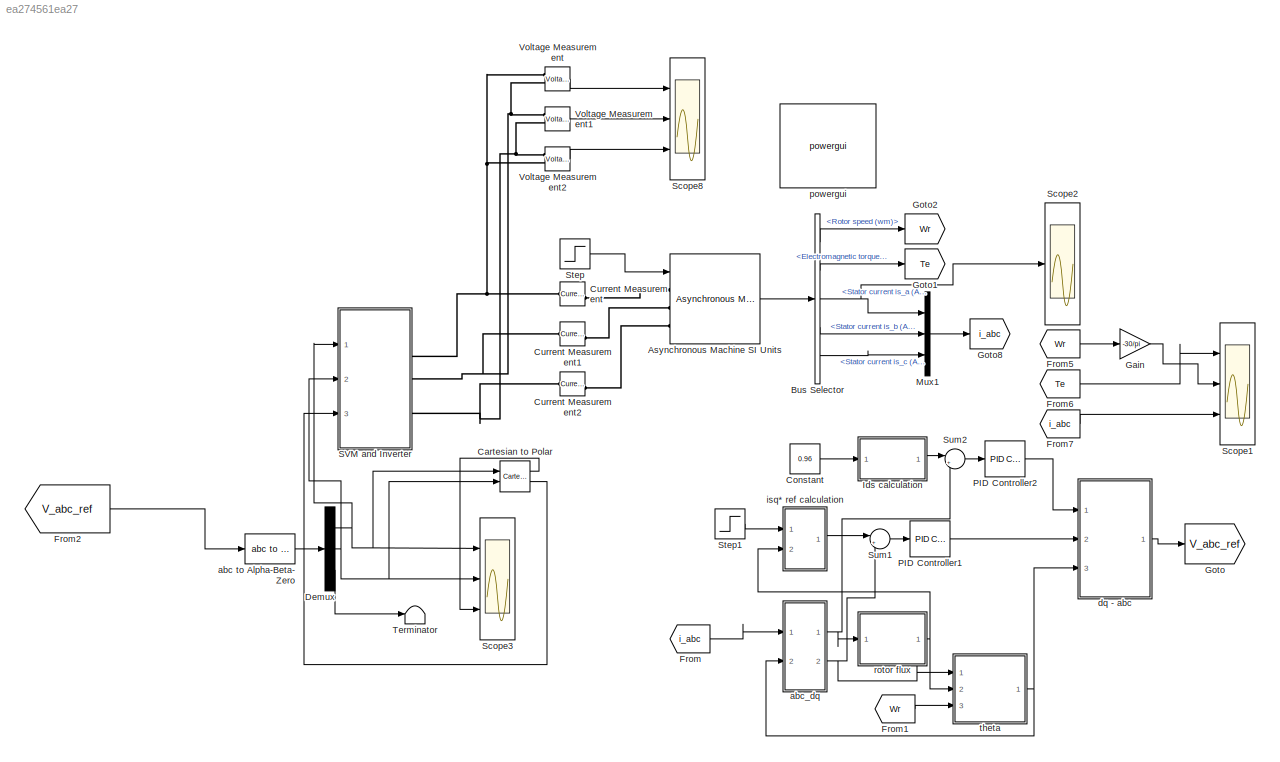
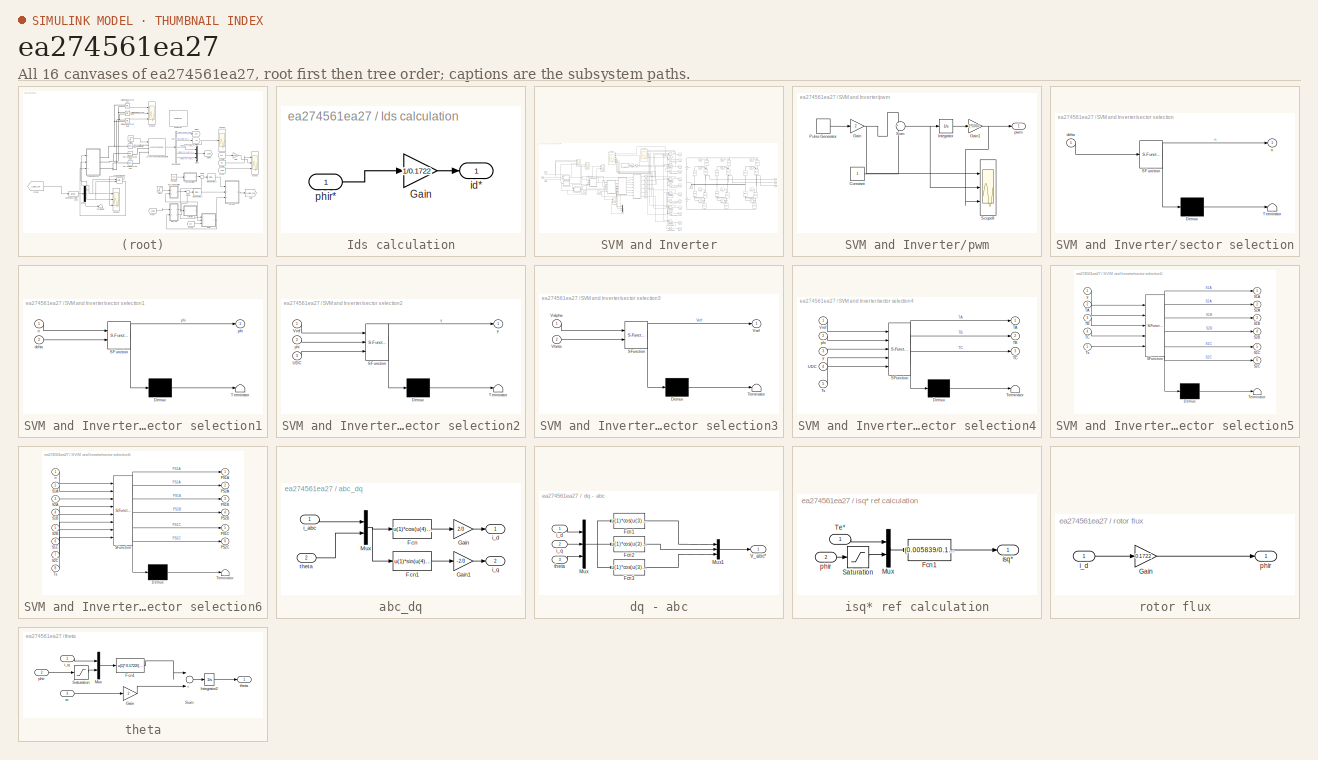
[diagram: thumbnail index - all 16 canvases of the model, root first then tree order]
MODEL slx_ea274561ea27
KIND model
CONFIG AbsTol = auto
CONFIG FixedStep = 10e-6
CONFIG MaxStep = auto
CONFIG MinStep = auto
CONFIG RelTol = 1e-8
CONFIG SampleTimeConstraint = Unconstrained
CONFIG Solver = ode1
CONFIG SolverMode = Auto
CONFIG SolverName = ode1
CONFIG StartTime = 0.0
CONFIG StopTime = 2
BLOCK [Reference] Asynchronous Machine SI Units  REF=powerlib/Machines/Asynchronous Machine
SI Units
  Ports = [1, 1, 0, 0, 0, 3]
  SourceBlock = powerlib/Machines/Asynchronous Machine\nSI Units
  SourceType = Asynchronous Machine
BLOCK [BusSelector] Bus Selector
  OutputSignals = Mechanical.Rotor speed (wm),Mechanical.Electromagnetic torque Te (N*m),Stator measurements.Stator current is_a (A),Stator measurements.Stator current is_b (A),Stator measurements.Stator current is_c (A)
  Ports = [1, 5]
BLOCK [Reference] Cartesian to Polar  REF=simulink_extras/Transformations/Cartesian to
Polar
  Ports = [2, 2]
  SourceBlock = simulink_extras/Transformations/Cartesian to\nPolar
  SourceType = Cart2Polar
BLOCK [Constant] Constant
  Value = 0.96
BLOCK [Reference] Current Measurement  REF=powerlib/Measurements/Current Measurement
  Ports = [0, 1, 0, 0, 0, 1, 1]
  SourceBlock = powerlib/Measurements/Current Measurement
  SourceType = Current Measurement
  UserDataPersistent = on
BLOCK [Reference] Current Measurement1  REF=powerlib/Measurements/Current Measurement
  Ports = [0, 1, 0, 0, 0, 1, 1]
  SourceBlock = powerlib/Measurements/Current Measurement
  SourceType = Current Measurement
  UserDataPersistent = on
BLOCK [Reference] Current Measurement2  REF=powerlib/Measurements/Current Measurement
  Ports = [0, 1, 0, 0, 0, 1, 1]
  SourceBlock = powerlib/Measurements/Current Measurement
  SourceType = Current Measurement
  UserDataPersistent = on
BLOCK [Demux] Demux
  DisplayOption = bar
  Outputs = 3
  Ports = [1, 3]
BLOCK [From] From
  GotoTag = i_abc
  TagVisibility = global
BLOCK [From] From1
  GotoTag = Wr
  TagVisibility = global
BLOCK [From] From2
  GotoTag = V_abc_ref
  TagVisibility = global
BLOCK [From] From5
  GotoTag = Wr
  TagVisibility = global
BLOCK [From] From6
  GotoTag = Te
  TagVisibility = global
BLOCK [From] From7
  GotoTag = i_abc
  TagVisibility = global
BLOCK [Gain] Gain
  Gain = -30/pi
  OutDataTypeStr = Inherit: Inherit via internal rule
  ParamDataTypeStr = Inherit: Inherit via internal rule
  SaturateOnIntegerOverflow = off
BLOCK [Goto] Goto
  GotoTag = V_abc_ref
  TagVisibility = global
BLOCK [Goto] Goto1
  GotoTag = Te
  TagVisibility = global
BLOCK [Goto] Goto2
  GotoTag = Wr
  TagVisibility = global
BLOCK [Goto] Goto8
  GotoTag = i_abc
  TagVisibility = global
BLOCK [SubSystem] Ids calculation
  Ports = [1, 1]
  RequestExecContextInheritance = off
  Variant = off
BLOCK [Gain] Ids calculation/Gain
  Gain = 1/0.1722
  OutDataTypeStr = Inherit: Inherit via internal rule
  ParamDataTypeStr = Inherit: Inherit via internal rule
  SaturateOnIntegerOverflow = off
BLOCK [Outport] Ids calculation/id*
  IconDisplay = Port number
BLOCK [Inport] Ids calculation/phir*
  IconDisplay = Port number
BLOCK [Mux] Mux1
  DisplayOption = bar
  Inputs = 3
  Ports = [3, 1]
BLOCK [Reference] PID Controller1  REF=simulink/Continuous/PID Controller
  Ports = [1, 1]
  SourceBlock = simulink/Continuous/PID Controller
  SourceType = PID 1dof
BLOCK [Reference] PID Controller2  REF=simulink/Continuous/PID Controller
  Ports = [1, 1]
  SourceBlock = simulink/Continuous/PID Controller
  SourceType = PID 1dof
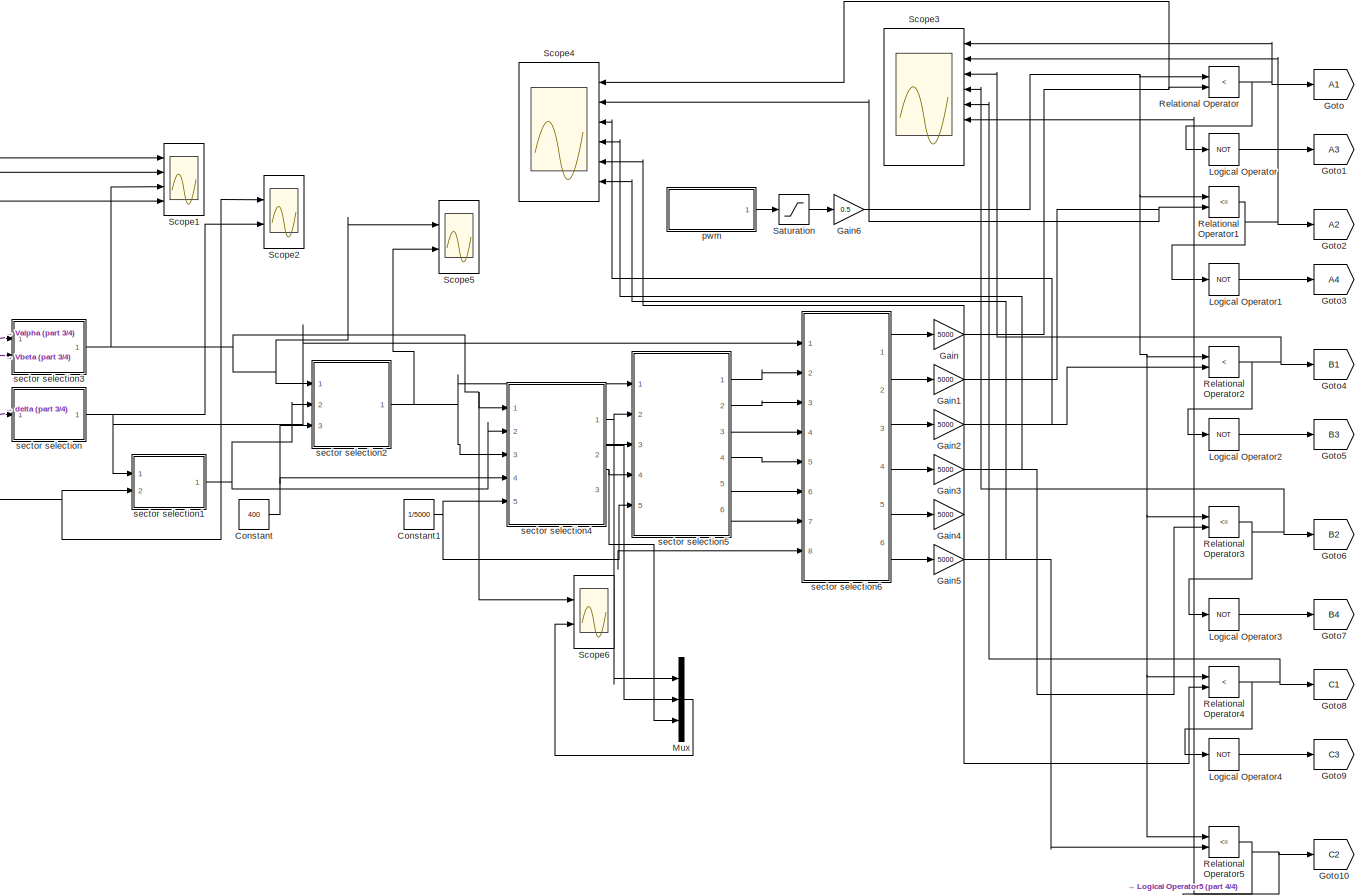
[diagram: SVM and Inverter - part 1/4, center side, full height]
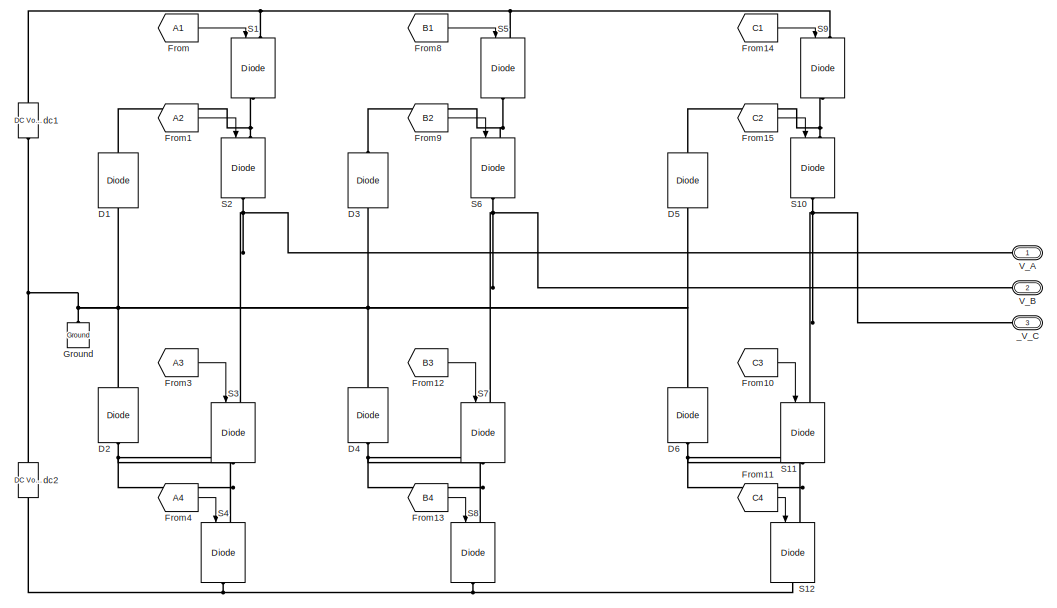
[diagram: SVM and Inverter - part 2/4, middle right region]
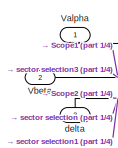
[diagram: SVM and Inverter - part 3/4, middle left region]
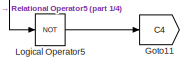
[diagram: SVM and Inverter - part 4/4, bottom center region]
BLOCK [SubSystem] SVM and Inverter
  Ports = [3, 0, 0, 0, 0, 0, 3]
  RequestExecContextInheritance = off
  Variant = off
BLOCK [Constant] SVM and Inverter/Constant
  Value = 400
BLOCK [Constant] SVM and Inverter/Constant1
  Value = 1/5000
BLOCK [Reference] SVM and Inverter/D1  REF=powerlib/Power
Electronics/Diode
  Ports = [0, 0, 0, 0, 0, 1, 1]
  SourceBlock = powerlib/Power\nElectronics/Diode
  SourceType = Diode
BLOCK [Reference] SVM and Inverter/D2  REF=powerlib/Power
Electronics/Diode
  Ports = [0, 0, 0, 0, 0, 1, 1]
  SourceBlock = powerlib/Power\nElectronics/Diode
  SourceType = Diode
BLOCK [Reference] SVM and Inverter/D3  REF=powerlib/Power
Electronics/Diode
  Ports = [0, 0, 0, 0, 0, 1, 1]
  SourceBlock = powerlib/Power\nElectronics/Diode
  SourceType = Diode
BLOCK [Reference] SVM and Inverter/D4  REF=powerlib/Power
Electronics/Diode
  Ports = [0, 0, 0, 0, 0, 1, 1]
  SourceBlock = powerlib/Power\nElectronics/Diode
  SourceType = Diode
BLOCK [Reference] SVM and Inverter/D5  REF=powerlib/Power
Electronics/Diode
  Ports = [0, 0, 0, 0, 0, 1, 1]
  SourceBlock = powerlib/Power\nElectronics/Diode
  SourceType = Diode
BLOCK [Reference] SVM and Inverter/D6  REF=powerlib/Power
Electronics/Diode
  Ports = [0, 0, 0, 0, 0, 1, 1]
  SourceBlock = powerlib/Power\nElectronics/Diode
  SourceType = Diode
BLOCK [From] SVM and Inverter/From
  GotoTag = A1
BLOCK [From] SVM and Inverter/From1
  GotoTag = A2
BLOCK [From] SVM and Inverter/From10
  GotoTag = C3
BLOCK [From] SVM and Inverter/From11
  GotoTag = C4
BLOCK [From] SVM and Inverter/From12
  GotoTag = B3
BLOCK [From] SVM and Inverter/From13
  GotoTag = B4
BLOCK [From] SVM and Inverter/From14
  GotoTag = C1
BLOCK [From] SVM and Inverter/From15
  GotoTag = C2
BLOCK [From] SVM and Inverter/From3
  GotoTag = A3
BLOCK [From] SVM and Inverter/From4
  GotoTag = A4
BLOCK [From] SVM and Inverter/From8
  GotoTag = B1
BLOCK [From] SVM and Inverter/From9
  GotoTag = B2
BLOCK [Gain] SVM and Inverter/Gain
  Gain = 5000
  OutDataTypeStr = Inherit: Inherit via internal rule
  ParamDataTypeStr = Inherit: Inherit via internal rule
  SaturateOnIntegerOverflow = off
BLOCK [Gain] SVM and Inverter/Gain1
  Gain = 5000
  OutDataTypeStr = Inherit: Inherit via internal rule
  ParamDataTypeStr = Inherit: Inherit via internal rule
  SaturateOnIntegerOverflow = off
BLOCK [Gain] SVM and Inverter/Gain2
  Gain = 5000
  OutDataTypeStr = Inherit: Inherit via internal rule
  ParamDataTypeStr = Inherit: Inherit via internal rule
  SaturateOnIntegerOverflow = off
BLOCK [Gain] SVM and Inverter/Gain3
  Gain = 5000
  OutDataTypeStr = Inherit: Inherit via internal rule
  ParamDataTypeStr = Inherit: Inherit via internal rule
  SaturateOnIntegerOverflow = off
BLOCK [Gain] SVM and Inverter/Gain4
  Gain = 5000
  OutDataTypeStr = Inherit: Inherit via internal rule
  ParamDataTypeStr = Inherit: Inherit via internal rule
  SaturateOnIntegerOverflow = off
BLOCK [Gain] SVM and Inverter/Gain5
  Gain = 5000
  OutDataTypeStr = Inherit: Inherit via internal rule
  ParamDataTypeStr = Inherit: Inherit via internal rule
  SaturateOnIntegerOverflow = off
BLOCK [Gain] SVM and Inverter/Gain6
  Gain = 0.5
  OutDataTypeStr = Inherit: Inherit via internal rule
  ParamDataTypeStr = Inherit: Inherit via internal rule
  SaturateOnIntegerOverflow = off
BLOCK [Goto] SVM and Inverter/Goto
  GotoTag = A1
BLOCK [Goto] SVM and Inverter/Goto1
  GotoTag = A3
BLOCK [Goto] SVM and Inverter/Goto10
  GotoTag = C2
BLOCK [Goto] SVM and Inverter/Goto11
  GotoTag = C4
BLOCK [Goto] SVM and Inverter/Goto2
  GotoTag = A2
BLOCK [Goto] SVM and Inverter/Goto3
  GotoTag = A4
BLOCK [Goto] SVM and Inverter/Goto4
  GotoTag = B1
BLOCK [Goto] SVM and Inverter/Goto5
  GotoTag = B3
BLOCK [Goto] SVM and Inverter/Goto6
  GotoTag = B2
BLOCK [Goto] SVM and Inverter/Goto7
  GotoTag = B4
BLOCK [Goto] SVM and Inverter/Goto8
  GotoTag = C1
BLOCK [Goto] SVM and Inverter/Goto9
  GotoTag = C3
BLOCK [Reference] SVM and Inverter/Ground  REF=powerlib/Elements/Ground
  Ports = [0, 0, 0, 0, 0, 1]
  SourceBlock = powerlib/Elements/Ground
  SourceType = Ground
BLOCK [Logic] SVM and Inverter/Logical Operator
  AllPortsSameDT = off
  Operator = NOT
  OutDataTypeStr = boolean
  Ports = [1, 1]
BLOCK [Logic] SVM and Inverter/Logical Operator1
  AllPortsSameDT = off
  Operator = NOT
  OutDataTypeStr = boolean
  Ports = [1, 1]
BLOCK [Logic] SVM and Inverter/Logical Operator2
  AllPortsSameDT = off
  Operator = NOT
  OutDataTypeStr = boolean
  Ports = [1, 1]
BLOCK [Logic] SVM and Inverter/Logical Operator3
  AllPortsSameDT = off
  Operator = NOT
  OutDataTypeStr = boolean
  Ports = [1, 1]
BLOCK [Logic] SVM and Inverter/Logical Operator4
  AllPortsSameDT = off
  Operator = NOT
  OutDataTypeStr = boolean
  Ports = [1, 1]
BLOCK [Logic] SVM and Inverter/Logical Operator5
  AllPortsSameDT = off
  Operator = NOT
  OutDataTypeStr = boolean
  Ports = [1, 1]
BLOCK [Mux] SVM and Inverter/Mux
  DisplayOption = bar
  Inputs = 3
  Ports = [3, 1]
BLOCK [RelationalOperator] SVM and Inverter/Relational Operator
  InputSameDT = off
  Operator = <
  OutDataTypeStr = boolean
  Ports = [2, 1]
BLOCK [RelationalOperator] SVM and Inverter/Relational Operator1
  InputSameDT = off
  Operator = <=
  OutDataTypeStr = boolean
  Ports = [2, 1]
BLOCK [RelationalOperator] SVM and Inverter/Relational Operator2
  InputSameDT = off
  Operator = <
  OutDataTypeStr = boolean
  Ports = [2, 1]
BLOCK [RelationalOperator] SVM and Inverter/Relational Operator3
  InputSameDT = off
  Operator = <=
  OutDataTypeStr = boolean
  Ports = [2, 1]
BLOCK [RelationalOperator] SVM and Inverter/Relational Operator4
  InputSameDT = off
  Operator = <
  OutDataTypeStr = boolean
  Ports = [2, 1]
BLOCK [RelationalOperator] SVM and Inverter/Relational Operator5
  InputSameDT = off
  Operator = <=
  OutDataTypeStr = boolean
  Ports = [2, 1]
BLOCK [Reference] SVM and Inverter/S1  REF=powerlib/Power
Electronics/IGBT//Diode
  Ports = [1, 0, 0, 0, 0, 1, 1]
  SourceBlock = powerlib/Power\nElectronics/IGBT//Diode
  SourceType = IGBT/Diode
BLOCK [Reference] SVM and Inverter/S10  REF=powerlib/Power
Electronics/IGBT//Diode
  Ports = [1, 0, 0, 0, 0, 1, 1]
  SourceBlock = powerlib/Power\nElectronics/IGBT//Diode
  SourceType = IGBT/Diode
BLOCK [Reference] SVM and Inverter/S11  REF=powerlib/Power
Electronics/IGBT//Diode
  Ports = [1, 0, 0, 0, 0, 1, 1]
  SourceBlock = powerlib/Power\nElectronics/IGBT//Diode
  SourceType = IGBT/Diode
BLOCK [Reference] SVM and Inverter/S12  REF=powerlib/Power
Electronics/IGBT//Diode
  Ports = [1, 0, 0, 0, 0, 1, 1]
  SourceBlock = powerlib/Power\nElectronics/IGBT//Diode
  SourceType = IGBT/Diode
BLOCK [Reference] SVM and Inverter/S2  REF=powerlib/Power
Electronics/IGBT//Diode
  Ports = [1, 0, 0, 0, 0, 1, 1]
  SourceBlock = powerlib/Power\nElectronics/IGBT//Diode
  SourceType = IGBT/Diode
BLOCK [Reference] SVM and Inverter/S3  REF=powerlib/Power
Electronics/IGBT//Diode
  Ports = [1, 0, 0, 0, 0, 1, 1]
  SourceBlock = powerlib/Power\nElectronics/IGBT//Diode
  SourceType = IGBT/Diode
BLOCK [Reference] SVM and Inverter/S4  REF=powerlib/Power
Electronics/IGBT//Diode
  Ports = [1, 0, 0, 0, 0, 1, 1]
  SourceBlock = powerlib/Power\nElectronics/IGBT//Diode
  SourceType = IGBT/Diode
BLOCK [Reference] SVM and Inverter/S5  REF=powerlib/Power
Electronics/IGBT//Diode
  Ports = [1, 0, 0, 0, 0, 1, 1]
  SourceBlock = powerlib/Power\nElectronics/IGBT//Diode
  SourceType = IGBT/Diode
BLOCK [Reference] SVM and Inverter/S6  REF=powerlib/Power
Electronics/IGBT//Diode
  Ports = [1, 0, 0, 0, 0, 1, 1]
  SourceBlock = powerlib/Power\nElectronics/IGBT//Diode
  SourceType = IGBT/Diode
BLOCK [Reference] SVM and Inverter/S7  REF=powerlib/Power
Electronics/IGBT//Diode
  Ports = [1, 0, 0, 0, 0, 1, 1]
  SourceBlock = powerlib/Power\nElectronics/IGBT//Diode
  SourceType = IGBT/Diode
BLOCK [Reference] SVM and Inverter/S8  REF=powerlib/Power
Electronics/IGBT//Diode
  Ports = [1, 0, 0, 0, 0, 1, 1]
  SourceBlock = powerlib/Power\nElectronics/IGBT//Diode
  SourceType = IGBT/Diode
BLOCK [Reference] SVM and Inverter/S9  REF=powerlib/Power
Electronics/IGBT//Diode
  Ports = [1, 0, 0, 0, 0, 1, 1]
  SourceBlock = powerlib/Power\nElectronics/IGBT//Diode
  SourceType = IGBT/Diode
BLOCK [Saturate] SVM and Inverter/Saturation
  InputPortMap = u0
  LowerLimit = 0
  Ports = [1, 1]
  UpperLimit = 1
BLOCK [Scope] SVM and Inverter/Scope1
  NumInputPorts = 4
  Ports = [4]
  ScopeSpecificationString = Simulink.scopes.TimeScopeBlockCfg('CurrentConfiguration', extmgr.ConfigurationSet(extmgr.Configuration('Core','General UI',true),extmgr.Configuration('Core','Source UI',true),extmgr.Configuration('Sources','WiredSimulink',true,'DataLoggingVariableName','ScopeData1','DataLoggingSaveFormat','StructureWithTime','DataLoggingDecimation','1','DataLoggingDecimateData',true,'DataLogging',true),extmgr.Conf...<+3640ch>
BLOCK [Scope] SVM and Inverter/Scope2
  NumInputPorts = 2
  Ports = [2]
  ScopeSpecificationString = Simulink.scopes.TimeScopeBlockCfg('CurrentConfiguration', extmgr.ConfigurationSet(extmgr.Configuration('Core','General UI',true,'FigureColor',[1 1 1]),extmgr.Configuration('Core','Source UI',true),extmgr.Configuration('Sources','WiredSimulink',true,'DataLoggingVariableName','ScopeData2','DataLoggingSaveFormat','StructureWithTime','DataLoggingDecimation','1','DataLoggingDecimateData',true,'DataLogg...<+2322ch>
BLOCK [Scope] SVM and Inverter/Scope3
  NumInputPorts = 8
  Ports = [8]
  ScopeSpecificationString = Simulink.scopes.TimeScopeBlockCfg('CurrentConfiguration', extmgr.ConfigurationSet(extmgr.Configuration('Core','General UI',true,'FigureColor',[1 1 1]),extmgr.Configuration('Core','Source UI',true),extmgr.Configuration('Sources','WiredSimulink',true,'DataLoggingVariableName','ScopeData3','DataLoggingSaveFormat','StructureWithTime','DataLoggingDecimation','1','DataLoggingDecimateData',true,'DataLogg...<+7370ch>
BLOCK [Scope] SVM and Inverter/Scope4
  NumInputPorts = 6
  Ports = [6]
  ScopeSpecificationString = Simulink.scopes.TimeScopeBlockCfg('CurrentConfiguration', extmgr.ConfigurationSet(extmgr.Configuration('Core','General UI',true,'FigureColor',[1 1 1]),extmgr.Configuration('Core','Source UI',true),extmgr.Configuration('Sources','WiredSimulink',true,'DataLoggingVariableName','ScopeData4','DataLoggingSaveFormat','StructureWithTime','DataLoggingDecimation','1','DataLoggingDecimateData',true,'DataLogg...<+7197ch>
BLOCK [Scope] SVM and Inverter/Scope5
  NumInputPorts = 2
  Ports = [2]
  ScopeSpecificationString = Simulink.scopes.TimeScopeBlockCfg('CurrentConfiguration', extmgr.ConfigurationSet(extmgr.Configuration('Core','General UI',true,'FigureColor',[1 1 1]),extmgr.Configuration('Core','Source UI',true),extmgr.Configuration('Sources','WiredSimulink',true,'DataLoggingVariableName','ScopeD','DataLoggingSaveFormat','StructureWithTime','DataLoggingDecimation','1','DataLoggingDecimateData',true,'DataLogging'...<+2357ch>
BLOCK [Scope] SVM and Inverter/Scope6
  NumInputPorts = 2
  Ports = [2]
  ScopeSpecificationString = Simulink.scopes.TimeScopeBlockCfg('CurrentConfiguration', extmgr.ConfigurationSet(extmgr.Configuration('Core','General UI',true,'FigureColor',[1 1 1]),extmgr.Configuration('Core','Source UI',true),extmgr.Configuration('Sources','WiredSimulink',true,'DataLoggingVariableName','ScopeData5','DataLoggingSaveFormat','StructureWithTime','DataLoggingDecimation','1','DataLoggingDecimateData',true,'DataLogg...<+2440ch>
BLOCK [PMIOPort] SVM and Inverter/V_A
  Port = 1
  Side = Right
BLOCK [PMIOPort] SVM and Inverter/V_B
  Port = 2
  Side = Right
BLOCK [Inport] SVM and Inverter/Valpha
  IconDisplay = Port number
BLOCK [Inport] SVM and Inverter/Vbeta
  IconDisplay = Port number
  Port = 2
BLOCK [PMIOPort] SVM and Inverter/_V_C
  Port = 3
  Side = Right
BLOCK [Reference] SVM and Inverter/dc1  REF=powerlib/Electrical
Sources/DC Voltage Source
  Ports = [0, 0, 0, 0, 0, 1, 1]
  SourceBlock = powerlib/Electrical\nSources/DC Voltage Source
  SourceType = DC Voltage Source
BLOCK [Reference] SVM and Inverter/dc2  REF=powerlib/Electrical
Sources/DC Voltage Source
  Ports = [0, 0, 0, 0, 0, 1, 1]
  SourceBlock = powerlib/Electrical\nSources/DC Voltage Source
  SourceType = DC Voltage Source
BLOCK [Inport] SVM and Inverter/delta
  IconDisplay = Port number
  Port = 3
BLOCK [SubSystem] SVM and Inverter/pwm
  Ports = [0, 1]
  RequestExecContextInheritance = off
  Variant = off
BLOCK [Constant] SVM and Inverter/pwm/Constant
BLOCK [Gain] SVM and Inverter/pwm/Gain
  Gain = 2
  OutDataTypeStr = Inherit: Inherit via internal rule
  ParamDataTypeStr = Inherit: Inherit via internal rule
  SaturateOnIntegerOverflow = off
BLOCK [Gain] SVM and Inverter/pwm/Gain1
  Gain = 2*5000
  OutDataTypeStr = Inherit: Inherit via internal rule
  ParamDataTypeStr = Inherit: Inherit via internal rule
  SaturateOnIntegerOverflow = off
BLOCK [Integrator] SVM and Inverter/pwm/Integrator
  Ports = [1, 1]
BLOCK [DiscretePulseGenerator] SVM and Inverter/pwm/Pulse Generator
  Period = 1/5000
  Ports = [0, 1]
  PulseType = Time based
  PulseWidth = 50
BLOCK [Scope] SVM and Inverter/pwm/Scope8
  NumInputPorts = 3
  Ports = [3]
  ScopeSpecificationString = Simulink.scopes.TimeScopeBlockCfg('CurrentConfiguration', extmgr.ConfigurationSet(extmgr.Configuration('Core','General UI',true,'FigureColor',[1 1 1]),extmgr.Configuration('Core','Source UI',true),extmgr.Configuration('Sources','WiredSimulink',true,'DataLoggingVariableName','ScopeData2'),extmgr.Configuration('Visuals','Time Domain',true,'SerializedDisplays',{struct('MinYLimReal','-0.25','MaxYLimRe...<+3191ch>
BLOCK [Sum] SVM and Inverter/pwm/Sum
  IconShape = round
  InputSameDT = off
  Inputs = +-
  OutDataTypeStr = Inherit: Inherit via internal rule
  Ports = [2, 1]
  SaturateOnIntegerOverflow = off
BLOCK [Outport] SVM and Inverter/pwm/pwm 
  IconDisplay = Port number
BLOCK [SubSystem] SVM and Inverter/sector selection
  ErrorFcn = Stateflow.Translate.translate
  PermitHierarchicalResolution = ExplicitOnly
  Ports = [1, 1]
  RequestExecContextInheritance = off
  SFBlockType = MATLAB Function
  TreatAsAtomicUnit = on
  Variant = off
BLOCK [Demux] SVM and Inverter/sector selection/ Demux 
  Outputs = 1
  Ports = [1, 1]
BLOCK [S-Function] SVM and Inverter/sector selection/ SFunction 
  EnableBusSupport = on
  FunctionName = sf_sfun
  PortCounts = [1 2]
  Ports = [1, 2]
  SFunctionDeploymentMode = off
  Tag = Stateflow S-Function foc 8
BLOCK [Terminator] SVM and Inverter/sector selection/ Terminator 
BLOCK [Inport] SVM and Inverter/sector selection/delta
  IconDisplay = Port number
BLOCK [Outport] SVM and Inverter/sector selection/n
  IconDisplay = Port number
BLOCK [SubSystem] SVM and Inverter/sector selection1
  ErrorFcn = Stateflow.Translate.translate
  PermitHierarchicalResolution = ExplicitOnly
  Ports = [2, 1]
  RequestExecContextInheritance = off
  SFBlockType = MATLAB Function
  TreatAsAtomicUnit = on
  Variant = off
BLOCK [Demux] SVM and Inverter/sector selection1/ Demux 
  Outputs = 1
  Ports = [1, 1]
BLOCK [S-Function] SVM and Inverter/sector selection1/ SFunction 
  EnableBusSupport = on
  FunctionName = sf_sfun
  PortCounts = [2 2]
  Ports = [2, 2]
  SFunctionDeploymentMode = off
  Tag = Stateflow S-Function foc 9
BLOCK [Terminator] SVM and Inverter/sector selection1/ Terminator 
BLOCK [Inport] SVM and Inverter/sector selection1/delta
  IconDisplay = Port number
  Port = 2
BLOCK [Inport] SVM and Inverter/sector selection1/n
  IconDisplay = Port number
BLOCK [Outport] SVM and Inverter/sector selection1/phi
  IconDisplay = Port number
BLOCK [SubSystem] SVM and Inverter/sector selection2
  ErrorFcn = Stateflow.Translate.translate
  PermitHierarchicalResolution = ExplicitOnly
  Ports = [3, 1]
  RequestExecContextInheritance = off
  SFBlockType = MATLAB Function
  TreatAsAtomicUnit = on
  Variant = off
BLOCK [Demux] SVM and Inverter/sector selection2/ Demux 
  Outputs = 1
  Ports = [1, 1]
BLOCK [S-Function] SVM and Inverter/sector selection2/ SFunction 
  EnableBusSupport = on
  FunctionName = sf_sfun
  PortCounts = [3 2]
  Ports = [3, 2]
  SFunctionDeploymentMode = off
  Tag = Stateflow S-Function foc 10
BLOCK [Terminator] SVM and Inverter/sector selection2/ Terminator 
BLOCK [Inport] SVM and Inverter/sector selection2/UDC
  IconDisplay = Port number
  Port = 3
BLOCK [Inport] SVM and Inverter/sector selection2/Vref
  IconDisplay = Port number
BLOCK [Inport] SVM and Inverter/sector selection2/phi
  IconDisplay = Port number
  Port = 2
BLOCK [Outport] SVM and Inverter/sector selection2/y
  IconDisplay = Port number
BLOCK [SubSystem] SVM and Inverter/sector selection3
  ErrorFcn = Stateflow.Translate.translate
  PermitHierarchicalResolution = ExplicitOnly
  Ports = [2, 1]
  RequestExecContextInheritance = off
  SFBlockType = MATLAB Function
  TreatAsAtomicUnit = on
  Variant = off
BLOCK [Demux] SVM and Inverter/sector selection3/ Demux 
  Outputs = 1
  Ports = [1, 1]
BLOCK [S-Function] SVM and Inverter/sector selection3/ SFunction 
  EnableBusSupport = on
  FunctionName = sf_sfun
  PortCounts = [2 2]
  Ports = [2, 2]
  SFunctionDeploymentMode = off
  Tag = Stateflow S-Function foc 11
BLOCK [Terminator] SVM and Inverter/sector selection3/ Terminator 
BLOCK [Inport] SVM and Inverter/sector selection3/Valpha
  IconDisplay = Port number
BLOCK [Inport] SVM and Inverter/sector selection3/Vbeta
  IconDisplay = Port number
  Port = 2
BLOCK [Outport] SVM and Inverter/sector selection3/Vref
  IconDisplay = Port number
BLOCK [SubSystem] SVM and Inverter/sector selection4
  ErrorFcn = Stateflow.Translate.translate
  PermitHierarchicalResolution = ExplicitOnly
  Ports = [5, 3]
  RequestExecContextInheritance = off
  SFBlockType = MATLAB Function
  TreatAsAtomicUnit = on
  Variant = off
BLOCK [Demux] SVM and Inverter/sector selection4/ Demux 
  Outputs = 1
  Ports = [1, 1]
BLOCK [S-Function] SVM and Inverter/sector selection4/ SFunction 
  EnableBusSupport = on
  FunctionName = sf_sfun
  PortCounts = [5 4]
  Ports = [5, 4]
  SFunctionDeploymentMode = off
  Tag = Stateflow S-Function foc 1
BLOCK [Terminator] SVM and Inverter/sector selection4/ Terminator 
BLOCK [Outport] SVM and Inverter/sector selection4/TA
  IconDisplay = Port number
BLOCK [Outport] SVM and Inverter/sector selection4/TB
  IconDisplay = Port number
  Port = 2
BLOCK [Outport] SVM and Inverter/sector selection4/TC
  IconDisplay = Port number
  Port = 3
BLOCK [Inport] SVM and Inverter/sector selection4/Ts
  IconDisplay = Port number
  Port = 5
BLOCK [Inport] SVM and Inverter/sector selection4/UDC
  IconDisplay = Port number
  Port = 4
BLOCK [Inport] SVM and Inverter/sector selection4/Vref
  IconDisplay = Port number
BLOCK [Inport] SVM and Inverter/sector selection4/phi
  IconDisplay = Port number
  Port = 2
BLOCK [Inport] SVM and Inverter/sector selection4/y
  IconDisplay = Port number
  Port = 3
BLOCK [SubSystem] SVM and Inverter/sector selection5
  ErrorFcn = Stateflow.Translate.translate
  PermitHierarchicalResolution = ExplicitOnly
  Ports = [5, 6]
  RequestExecContextInheritance = off
  SFBlockType = MATLAB Function
  TreatAsAtomicUnit = on
  Variant = off
BLOCK [Demux] SVM and Inverter/sector selection5/ Demux 
  Outputs = 1
  Ports = [1, 1]
BLOCK [S-Function] SVM and Inverter/sector selection5/ SFunction 
  EnableBusSupport = on
  FunctionName = sf_sfun
  PortCounts = [5 7]
  Ports = [5, 7]
  SFunctionDeploymentMode = off
  Tag = Stateflow S-Function foc 2
BLOCK [Terminator] SVM and Inverter/sector selection5/ Terminator 
BLOCK [Outport] SVM and Inverter/sector selection5/S1A
  IconDisplay = Port number
BLOCK [Outport] SVM and Inverter/sector selection5/S1B
  IconDisplay = Port number
  Port = 3
BLOCK [Outport] SVM and Inverter/sector selection5/S1C
  IconDisplay = Port number
  Port = 5
BLOCK [Outport] SVM and Inverter/sector selection5/S2A
  IconDisplay = Port number
  Port = 2
BLOCK [Outport] SVM and Inverter/sector selection5/S2B
  IconDisplay = Port number
  Port = 4
BLOCK [Outport] SVM and Inverter/sector selection5/S2C
  IconDisplay = Port number
  Port = 6
BLOCK [Inport] SVM and Inverter/sector selection5/TA
  IconDisplay = Port number
  Port = 2
BLOCK [Inport] SVM and Inverter/sector selection5/TB
  IconDisplay = Port number
  Port = 3
BLOCK [Inport] SVM and Inverter/sector selection5/TC
  IconDisplay = Port number
  Port = 4
BLOCK [Inport] SVM and Inverter/sector selection5/Ts
  IconDisplay = Port number
  Port = 5
BLOCK [Inport] SVM and Inverter/sector selection5/y
  IconDisplay = Port number
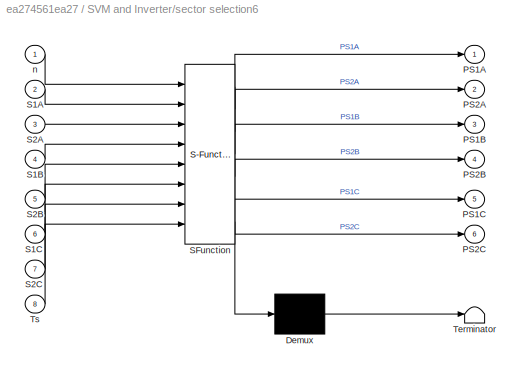
BLOCK [SubSystem] SVM and Inverter/sector selection6
  ErrorFcn = Stateflow.Translate.translate
  PermitHierarchicalResolution = ExplicitOnly
  Ports = [8, 6]
  RequestExecContextInheritance = off
  SFBlockType = MATLAB Function
  TreatAsAtomicUnit = on
  Variant = off
BLOCK [Demux] SVM and Inverter/sector selection6/ Demux 
  Outputs = 1
  Ports = [1, 1]
BLOCK [S-Function] SVM and Inverter/sector selection6/ SFunction 
  EnableBusSupport = on
  FunctionName = sf_sfun
  PortCounts = [8 7]
  Ports = [8, 7]
  SFunctionDeploymentMode = off
  Tag = Stateflow S-Function foc 3
BLOCK [Terminator] SVM and Inverter/sector selection6/ Terminator 
BLOCK [Outport] SVM and Inverter/sector selection6/PS1A
  IconDisplay = Port number
BLOCK [Outport] SVM and Inverter/sector selection6/PS1B
  IconDisplay = Port number
  Port = 3
BLOCK [Outport] SVM and Inverter/sector selection6/PS1C
  IconDisplay = Port number
  Port = 5
BLOCK [Outport] SVM and Inverter/sector selection6/PS2A
  IconDisplay = Port number
  Port = 2
BLOCK [Outport] SVM and Inverter/sector selection6/PS2B
  IconDisplay = Port number
  Port = 4
BLOCK [Outport] SVM and Inverter/sector selection6/PS2C
  IconDisplay = Port number
  Port = 6
BLOCK [Inport] SVM and Inverter/sector selection6/S1A
  IconDisplay = Port number
  Port = 2
BLOCK [Inport] SVM and Inverter/sector selection6/S1B
  IconDisplay = Port number
  Port = 4
BLOCK [Inport] SVM and Inverter/sector selection6/S1C
  IconDisplay = Port number
  Port = 6
BLOCK [Inport] SVM and Inverter/sector selection6/S2A
  IconDisplay = Port number
  Port = 3
BLOCK [Inport] SVM and Inverter/sector selection6/S2B
  IconDisplay = Port number
  Port = 5
BLOCK [Inport] SVM and Inverter/sector selection6/S2C
  IconDisplay = Port number
  Port = 7
BLOCK [Inport] SVM and Inverter/sector selection6/Ts
  IconDisplay = Port number
  Port = 8
BLOCK [Inport] SVM and Inverter/sector selection6/n
  IconDisplay = Port number
BLOCK [Scope] Scope1
  NumInputPorts = 3
  Ports = [3]
  ScopeSpecificationString = Simulink.scopes.TimeScopeBlockCfg('CurrentConfiguration', extmgr.ConfigurationSet(extmgr.Configuration('Core','General UI',true,'FigureColor',[1 1 1]),extmgr.Configuration('Core','Source UI',true),extmgr.Configuration('Sources','WiredSimulink',true,'DataLoggingVariableName','torque','DataLogging',true,'DataLoggingSaveFormat','StructureWithTime'),extmgr.Configuration('Visuals','Time Domain',true,'S...<+3436ch>
BLOCK [Scope] Scope2
  Ports = [1]
  ScopeSpecificationString = Simulink.scopes.TimeScopeBlockCfg('CurrentConfiguration', extmgr.ConfigurationSet(extmgr.Configuration('Core','General UI',true,'FigureColor',[1 1 1]),extmgr.Configuration('Core','Source UI',true),extmgr.Configuration('Sources','WiredSimulink',true,'DataLoggingVariableName','ia','DataLogging',true,'DataLoggingSaveFormat','StructureWithTime'),extmgr.Configuration('Visuals','Time Domain',true,'Seria...<+3467ch>
BLOCK [Scope] Scope3
  NumInputPorts = 3
  Ports = [3]
  ScopeSpecificationString = Simulink.scopes.TimeScopeBlockCfg('CurrentConfiguration', extmgr.ConfigurationSet(extmgr.Configuration('Core','General UI',true),extmgr.Configuration('Core','Source UI',true),extmgr.Configuration('Sources','WiredSimulink',true,'DataLoggingVariableName','ScopeData3'),extmgr.Configuration('Visuals','Time Domain',true,'SerializedDisplays',{struct('MinYLimReal','-1258.67435','MaxYLimReal','1278.51145'...<+2854ch>
BLOCK [Scope] Scope8
  NumInputPorts = 3
  Ports = [3]
  ScopeSpecificationString = Simulink.scopes.TimeScopeBlockCfg('CurrentConfiguration', extmgr.ConfigurationSet(extmgr.Configuration('Core','General UI',true,'FigureColor',[1 1 1]),extmgr.Configuration('Core','Source UI',true),extmgr.Configuration('Sources','WiredSimulink',true,'DataLoggingVariableName','ScopeData7'),extmgr.Configuration('Visuals','Time Domain',true,'SerializedDisplays',{struct('MinYLimReal','-500.08537','MaxY...<+3274ch>
BLOCK [Step] Step
  After = 20
  Before = 10
  SampleTime = 0
BLOCK [Step] Step1
  After = 20
  Before = 10
  SampleTime = 0
BLOCK [Sum] Sum1
  IconShape = round
  InputSameDT = off
  Inputs = |+-
  OutDataTypeStr = Inherit: Inherit via internal rule
  Ports = [2, 1]
  SaturateOnIntegerOverflow = off
BLOCK [Sum] Sum2
  IconShape = round
  InputSameDT = off
  Inputs = |+-
  OutDataTypeStr = Inherit: Inherit via internal rule
  Ports = [2, 1]
  SaturateOnIntegerOverflow = off
BLOCK [Terminator] Terminator
BLOCK [Reference] Voltage Measurement  REF=powerlib/Measurements/Voltage Measurement
  Ports = [0, 1, 0, 0, 0, 2]
  SourceBlock = powerlib/Measurements/Voltage Measurement
  SourceType = Voltage Measurement
  UserDataPersistent = on
BLOCK [Reference] Voltage Measurement1  REF=powerlib/Measurements/Voltage Measurement
  Ports = [0, 1, 0, 0, 0, 2]
  SourceBlock = powerlib/Measurements/Voltage Measurement
  SourceType = Voltage Measurement
  UserDataPersistent = on
BLOCK [Reference] Voltage Measurement2  REF=powerlib/Measurements/Voltage Measurement
  Ports = [0, 1, 0, 0, 0, 2]
  SourceBlock = powerlib/Measurements/Voltage Measurement
  SourceType = Voltage Measurement
  UserDataPersistent = on
BLOCK [Reference] abc to Alpha-Beta-Zero  REF=powerlib_meascontrol/Transformations/abc to
Alpha-Beta-Zero
  Ports = [1, 1]
  SourceBlock = powerlib_meascontrol/Transformations/abc to\nAlpha-Beta-Zero
  SourceType = abc to Alpha-Beta-Zero Transformation
BLOCK [SubSystem] abc_dq
  Ports = [2, 2]
  RequestExecContextInheritance = off
  Variant = off
BLOCK [Fcn] abc_dq/Fcn
  Expr = u(1)*cos(u(4))+u(2)*cos(u(4)-2*pi/3)+u(3)*cos(u(4)+2*pi/3)
BLOCK [Fcn] abc_dq/Fcn1
  Expr = u(1)*sin(u(4))+u(2)*sin(u(4)-2*pi/3)+u(3)*sin(u(4)+2*pi/3)
BLOCK [Gain] abc_dq/Gain
  Gain = 2/3
  OutDataTypeStr = Inherit: Inherit via internal rule
  ParamDataTypeStr = Inherit: Inherit via internal rule
  SaturateOnIntegerOverflow = off
BLOCK [Gain] abc_dq/Gain1
  Gain = -2/3
  OutDataTypeStr = Inherit: Inherit via internal rule
  ParamDataTypeStr = Inherit: Inherit via internal rule
  SaturateOnIntegerOverflow = off
BLOCK [Mux] abc_dq/Mux
  DisplayOption = bar
  Inputs = 2
  Ports = [2, 1]
BLOCK [Inport] abc_dq/i_abc
  IconDisplay = Port number
BLOCK [Outport] abc_dq/i_d
  IconDisplay = Port number
BLOCK [Outport] abc_dq/i_q
  IconDisplay = Port number
  Port = 2
BLOCK [Inport] abc_dq/theta
  IconDisplay = Port number
  Port = 2
BLOCK [SubSystem] dq - abc
  Ports = [3, 1]
  RequestExecContextInheritance = off
  Variant = off
BLOCK [Fcn] dq - abc/Fcn1
  Expr = u(1)*cos(u(3))-u(2)*sin(u(3))
BLOCK [Fcn] dq - abc/Fcn2
  Expr = u(1)*cos(u(3)-2*pi/3)-u(2)*sin(u(3)-2*pi/3)
BLOCK [Fcn] dq - abc/Fcn3
  Expr = u(1)*cos(u(3)+2*pi/3)-u(2)*sin(u(3)+2*pi/3)
BLOCK [Mux] dq - abc/Mux
  DisplayOption = bar
  Inputs = 3
  Ports = [3, 1]
BLOCK [Mux] dq - abc/Mux1
  DisplayOption = bar
  Inputs = 3
  Ports = [3, 1]
BLOCK [Outport] dq - abc/V_abc*
  IconDisplay = Port number
BLOCK [Inport] dq - abc/i_d
  IconDisplay = Port number
BLOCK [Inport] dq - abc/i_q
  IconDisplay = Port number
  Port = 2
BLOCK [Inport] dq - abc/theta
  IconDisplay = Port number
  Port = 3
BLOCK [SubSystem] isq* ref calculation
  Ports = [2, 1]
  RequestExecContextInheritance = off
  Variant = off
BLOCK [Fcn] isq* ref calculation/Fcn1
  Expr = (0.005839/0.1722)*(u(1)/u(2))
BLOCK [Mux] isq* ref calculation/Mux
  DisplayOption = bar
  Inputs = 2
  Ports = [2, 1]
BLOCK [Saturate] isq* ref calculation/Saturation
  InputPortMap = u0
  LowerLimit = 1e-3
  Ports = [1, 1]
  UpperLimit = inf
BLOCK [Inport] isq* ref calculation/Te*
  IconDisplay = Port number
BLOCK [Outport] isq* ref calculation/isq*
  IconDisplay = Port number
BLOCK [Inport] isq* ref calculation/phir
  IconDisplay = Port number
  Port = 2
BLOCK [Reference] powergui  REF=powerlib/powergui
  Ports = []
  Priority = 1
  SourceBlock = powerlib/powergui
  SourceType = PSB option menu block
  UserDataPersistent = on
BLOCK [SubSystem] rotor flux
  Ports = [1, 1]
  RequestExecContextInheritance = off
  Variant = off
BLOCK [Gain] rotor flux/Gain
  Gain = 0.1722
  OutDataTypeStr = Inherit: Inherit via internal rule
  ParamDataTypeStr = Inherit: Inherit via internal rule
  SaturateOnIntegerOverflow = off
BLOCK [Inport] rotor flux/i_d
  IconDisplay = Port number
BLOCK [Outport] rotor flux/phir
  IconDisplay = Port number
BLOCK [SubSystem] theta
  Ports = [3, 1]
  RequestExecContextInheritance = off
  Variant = off
BLOCK [Fcn] theta/Fcn1
  Expr = u(1)*0.1722/(u(2)*0.4564)
BLOCK [Gain] theta/Gain
  Gain = 2
  OutDataTypeStr = Inherit: Inherit via internal rule
  ParamDataTypeStr = Inherit: Inherit via internal rule
  SaturateOnIntegerOverflow = off
BLOCK [Integrator] theta/Integrator2
  Ports = [1, 1]
BLOCK [Mux] theta/Mux
  DisplayOption = bar
  Inputs = 2
  Ports = [2, 1]
BLOCK [Saturate] theta/Saturation
  InputPortMap = u0
  LowerLimit = 1e-3
  Ports = [1, 1]
  UpperLimit = inf
BLOCK [Sum] theta/Sum
  InputSameDT = off
  Inputs = |++
  OutDataTypeStr = Inherit: Inherit via internal rule
  Ports = [2, 1]
  SaturateOnIntegerOverflow = off
BLOCK [Inport] theta/i_q
  IconDisplay = Port number
BLOCK [Inport] theta/phir
  IconDisplay = Port number
  Port = 2
BLOCK [Outport] theta/theta
  IconDisplay = Port number
BLOCK [Inport] theta/w
  IconDisplay = Port number
  Port = 3
LINE Asynchronous Machine SI Units:1 -> Bus Selector:1
LINE Bus Selector:1 -> Goto2:1
LINE Bus Selector:2 -> Goto1:1
NET Bus Selector:3 -> Mux1:1, Scope2:1
LINE Bus Selector:4 -> Mux1:2
LINE Bus Selector:5 -> Mux1:3
LINE Cartesian to Polar:1 -> Scope3:3
LINE Cartesian to Polar:2 -> SVM and Inverter:3
LINE Constant:1 -> Ids calculation:1
NET Demux:1 -> Cartesian to Polar:1, SVM and Inverter:1, Scope3:1
NET Demux:2 -> Cartesian to Polar:2, SVM and Inverter:2, Scope3:2
LINE Demux:3 -> Terminator:1
LINE From1:1 -> theta:3
LINE From2:1 -> abc to Alpha-Beta-Zero:1
LINE From5:1 -> Gain:1
LINE From6:1 -> Scope1:1
LINE From7:1 -> Scope1:3
LINE From:1 -> abc_dq:1
LINE Gain:1 -> Scope1:2
LINE Ids calculation/Gain:1 -> Ids calculation/id*:1
LINE Ids calculation/phir*:1 -> Ids calculation/Gain:1
LINE Ids calculation:1 -> Sum2:1
LINE Mux1:1 -> Goto8:1
LINE PID Controller1:1 -> dq - abc:2
LINE PID Controller2:1 -> dq - abc:1
NET SVM and Inverter/Constant1:1 -> SVM and Inverter/sector selection4:5, SVM and Inverter/sector selection5:5, SVM and Inverter/sector selection6:8
NET SVM and Inverter/Constant:1 -> SVM and Inverter/sector selection2:3, SVM and Inverter/sector selection4:4
LINE SVM and Inverter/From10:1 -> SVM and Inverter/S11:1
LINE SVM and Inverter/From11:1 -> SVM and Inverter/S12:1
LINE SVM and Inverter/From12:1 -> SVM and Inverter/S7:1
LINE SVM and Inverter/From13:1 -> SVM and Inverter/S8:1
LINE SVM and Inverter/From14:1 -> SVM and Inverter/S9:1
LINE SVM and Inverter/From15:1 -> SVM and Inverter/S10:1
LINE SVM and Inverter/From1:1 -> SVM and Inverter/S2:1
LINE SVM and Inverter/From3:1 -> SVM and Inverter/S3:1
LINE SVM and Inverter/From4:1 -> SVM and Inverter/S4:1
LINE SVM and Inverter/From8:1 -> SVM and Inverter/S5:1
LINE SVM and Inverter/From9:1 -> SVM and Inverter/S6:1
LINE SVM and Inverter/From:1 -> SVM and Inverter/S1:1
NET SVM and Inverter/Gain1:1 -> SVM and Inverter/Relational Operator1:2, SVM and Inverter/Scope4:2
NET SVM and Inverter/Gain2:1 -> SVM and Inverter/Relational Operator2:2, SVM and Inverter/Scope4:3
NET SVM and Inverter/Gain3:1 -> SVM and Inverter/Relational Operator3:2, SVM and Inverter/Scope4:4
NET SVM and Inverter/Gain4:1 -> SVM and Inverter/Relational Operator4:2, SVM and Inverter/Scope4:5
NET SVM and Inverter/Gain5:1 -> SVM and Inverter/Relational Operator5:2, SVM and Inverter/Scope4:6
NET SVM and Inverter/Gain6:1 -> SVM and Inverter/Relational Operator1:1, SVM and Inverter/Relational Operator2:1, SVM and Inverter/Relational Operator3:1, SVM and Inverter/Relational Operator4:1, SVM and Inverter/Relational Operator5:1, SVM and Inverter/Relational Operator:1
NET SVM and Inverter/Gain:1 -> SVM and Inverter/Relational Operator:2, SVM and Inverter/Scope4:1
LINE SVM and Inverter/Logical Operator1:1 -> SVM and Inverter/Goto3:1
LINE SVM and Inverter/Logical Operator2:1 -> SVM and Inverter/Goto5:1
LINE SVM and Inverter/Logical Operator3:1 -> SVM and Inverter/Goto7:1
LINE SVM and Inverter/Logical Operator4:1 -> SVM and Inverter/Goto9:1
LINE SVM and Inverter/Logical Operator5:1 -> SVM and Inverter/Goto11:1
LINE SVM and Inverter/Logical Operator:1 -> SVM and Inverter/Goto1:1
LINE SVM and Inverter/Mux:1 -> SVM and Inverter/Scope6:2
NET SVM and Inverter/Relational Operator1:1 -> SVM and Inverter/Goto2:1, SVM and Inverter/Logical Operator1:1, SVM and Inverter/Scope3:2
NET SVM and Inverter/Relational Operator2:1 -> SVM and Inverter/Goto4:1, SVM and Inverter/Logical Operator2:1, SVM and Inverter/Scope3:3
NET SVM and Inverter/Relational Operator3:1 -> SVM and Inverter/Goto6:1, SVM and Inverter/Logical Operator3:1, SVM and Inverter/Scope3:4
NET SVM and Inverter/Relational Operator4:1 -> SVM and Inverter/Goto8:1, SVM and Inverter/Logical Operator4:1, SVM and Inverter/Scope3:5
NET SVM and Inverter/Relational Operator5:1 -> SVM and Inverter/Goto10:1, SVM and Inverter/Logical Operator5:1, SVM and Inverter/Scope3:6
NET SVM and Inverter/Relational Operator:1 -> SVM and Inverter/Goto:1, SVM and Inverter/Logical Operator:1, SVM and Inverter/Scope3:1
LINE SVM and Inverter/Saturation:1 -> SVM and Inverter/Gain6:1
NET SVM and Inverter/Valpha:1 -> SVM and Inverter/Scope1:1, SVM and Inverter/sector selection3:1
NET SVM and Inverter/Vbeta:1 -> SVM and Inverter/Scope1:2, SVM and Inverter/sector selection3:2
NET SVM and Inverter/delta:1 -> SVM and Inverter/Scope1:4, SVM and Inverter/Scope2:1, SVM and Inverter/sector selection1:2, SVM and Inverter/sector selection:1
LINE SVM and Inverter/pwm/Constant:1 -> SVM and Inverter/pwm/Sum:2
NET SVM and Inverter/pwm/Gain1:1 -> SVM and Inverter/pwm/Scope8:3, SVM and Inverter/pwm/pwm :1
NET SVM and Inverter/pwm/Gain:1 -> SVM and Inverter/pwm/Scope8:1, SVM and Inverter/pwm/Sum:1
LINE SVM and Inverter/pwm/Integrator:1 -> SVM and Inverter/pwm/Gain1:1
LINE SVM and Inverter/pwm/Pulse Generator:1 -> SVM and Inverter/pwm/Gain:1
NET SVM and Inverter/pwm/Sum:1 -> SVM and Inverter/pwm/Integrator:1, SVM and Inverter/pwm/Scope8:2
LINE SVM and Inverter/pwm:1 -> SVM and Inverter/Saturation:1
NET SVM and Inverter/sector selection1:1 -> SVM and Inverter/sector selection2:2, SVM and Inverter/sector selection4:2
NET SVM and Inverter/sector selection2:1 -> SVM and Inverter/Scope5:2, SVM and Inverter/sector selection4:3, SVM and Inverter/sector selection5:1
NET SVM and Inverter/sector selection3:1 -> SVM and Inverter/Scope1:3, SVM and Inverter/Scope5:1, SVM and Inverter/Scope6:1, SVM and Inverter/sector selection2:1, SVM and Inverter/sector selection4:1
NET SVM and Inverter/sector selection4:1 -> SVM and Inverter/Mux:1, SVM and Inverter/sector selection5:2
NET SVM and Inverter/sector selection4:2 -> SVM and Inverter/Mux:2, SVM and Inverter/sector selection5:3
NET SVM and Inverter/sector selection4:3 -> SVM and Inverter/Mux:3, SVM and Inverter/sector selection5:4
LINE SVM and Inverter/sector selection5:1 -> SVM and Inverter/sector selection6:2
LINE SVM and Inverter/sector selection5:2 -> SVM and Inverter/sector selection6:3
LINE SVM and Inverter/sector selection5:3 -> SVM and Inverter/sector selection6:4
LINE SVM and Inverter/sector selection5:4 -> SVM and Inverter/sector selection6:5
LINE SVM and Inverter/sector selection5:5 -> SVM and Inverter/sector selection6:6
LINE SVM and Inverter/sector selection5:6 -> SVM and Inverter/sector selection6:7
LINE SVM and Inverter/sector selection6:1 -> SVM and Inverter/Gain:1
LINE SVM and Inverter/sector selection6:2 -> SVM and Inverter/Gain1:1
LINE SVM and Inverter/sector selection6:3 -> SVM and Inverter/Gain2:1
LINE SVM and Inverter/sector selection6:4 -> SVM and Inverter/Gain3:1
LINE SVM and Inverter/sector selection6:5 -> SVM and Inverter/Gain4:1
LINE SVM and Inverter/sector selection6:6 -> SVM and Inverter/Gain5:1
NET SVM and Inverter/sector selection:1 -> SVM and Inverter/Scope2:2, SVM and Inverter/sector selection1:1, SVM and Inverter/sector selection6:1
LINE Step1:1 -> isq* ref calculation:1
LINE Step:1 -> Asynchronous Machine SI Units:1
LINE Sum1:1 -> PID Controller1:1
LINE Sum2:1 -> PID Controller2:1
LINE Voltage Measurement1:1 -> Scope8:2
LINE Voltage Measurement2:1 -> Scope8:3
LINE Voltage Measurement:1 -> Scope8:1
LINE abc to Alpha-Beta-Zero:1 -> Demux:1
LINE abc_dq/Fcn1:1 -> abc_dq/Gain1:1
LINE abc_dq/Fcn:1 -> abc_dq/Gain:1
LINE abc_dq/Gain1:1 -> abc_dq/i_q:1
LINE abc_dq/Gain:1 -> abc_dq/i_d:1
NET abc_dq/Mux:1 -> abc_dq/Fcn1:1, abc_dq/Fcn:1
LINE abc_dq/i_abc:1 -> abc_dq/Mux:1
LINE abc_dq/theta:1 -> abc_dq/Mux:2
NET abc_dq:1 -> Sum2:2, rotor flux:1
NET abc_dq:2 -> Sum1:2, theta:1
LINE dq - abc/Fcn1:1 -> dq - abc/Mux1:1
LINE dq - abc/Fcn2:1 -> dq - abc/Mux1:2
LINE dq - abc/Fcn3:1 -> dq - abc/Mux1:3
LINE dq - abc/Mux1:1 -> dq - abc/V_abc*:1
NET dq - abc/Mux:1 -> dq - abc/Fcn1:1, dq - abc/Fcn2:1, dq - abc/Fcn3:1
LINE dq - abc/i_d:1 -> dq - abc/Mux:1
LINE dq - abc/i_q:1 -> dq - abc/Mux:2
LINE dq - abc/theta:1 -> dq - abc/Mux:3
LINE dq - abc:1 -> Goto:1
LINE isq* ref calculation/Fcn1:1 -> isq* ref calculation/isq*:1
LINE isq* ref calculation/Mux:1 -> isq* ref calculation/Fcn1:1
LINE isq* ref calculation/Saturation:1 -> isq* ref calculation/Mux:2
LINE isq* ref calculation/Te*:1 -> isq* ref calculation/Mux:1
LINE isq* ref calculation/phir:1 -> isq* ref calculation/Saturation:1
LINE isq* ref calculation:1 -> Sum1:1
LINE rotor flux/Gain:1 -> rotor flux/phir:1
LINE rotor flux/i_d:1 -> rotor flux/Gain:1
NET rotor flux:1 -> isq* ref calculation:2, theta:2
LINE theta/Fcn1:1 -> theta/Sum:1
LINE theta/Gain:1 -> theta/Sum:2
LINE theta/Integrator2:1 -> theta/theta:1
LINE theta/Mux:1 -> theta/Fcn1:1
LINE theta/Saturation:1 -> theta/Mux:2
LINE theta/Sum:1 -> theta/Integrator2:1
LINE theta/i_q:1 -> theta/Mux:1
LINE theta/phir:1 -> theta/Saturation:1
LINE theta/w:1 -> theta/Gain:1
NET theta:1 -> abc_dq:2, dq - abc:3
PLINE Asynchronous Machine SI Units:LConn1 -- Current Measurement:RConn1
PLINE Asynchronous Machine SI Units:LConn2 -- Current Measurement1:RConn1
PLINE Asynchronous Machine SI Units:LConn3 -- Current Measurement2:RConn1
PNET net1: Current Measurement1:LConn1 -- SVM and Inverter:RConn2 -- Voltage Measurement1:LConn1 -- Voltage Measurement:LConn2
PNET net2: Current Measurement2:LConn1 -- SVM and Inverter:RConn3 -- Voltage Measurement1:LConn2 -- Voltage Measurement2:LConn1
PNET net3: Current Measurement:LConn1 -- SVM and Inverter:RConn1 -- Voltage Measurement2:LConn2 -- Voltage Measurement:LConn1
PNET net4: SVM and Inverter/D1:LConn1 -- SVM and Inverter/D2:RConn1 -- SVM and Inverter/D3:LConn1 -- SVM and Inverter/D4:RConn1 -- SVM and Inverter/D5:LConn1 -- SVM and Inverter/D6:RConn1 -- SVM and Inverter/Ground:LConn1 -- SVM and Inverter/dc1:LConn1 -- SVM and Inverter/dc2:RConn1
PNET net5: SVM and Inverter/D1:RConn1 -- SVM and Inverter/S1:RConn1 -- SVM and Inverter/S2:LConn1
PNET net6: SVM and Inverter/D2:LConn1 -- SVM and Inverter/S3:RConn1 -- SVM and Inverter/S4:LConn1
PNET net7: SVM and Inverter/D3:RConn1 -- SVM and Inverter/S5:RConn1 -- SVM and Inverter/S6:LConn1
PNET net8: SVM and Inverter/D4:LConn1 -- SVM and Inverter/S7:RConn1 -- SVM and Inverter/S8:LConn1
PNET net9: SVM and Inverter/D5:RConn1 -- SVM and Inverter/S10:LConn1 -- SVM and Inverter/S9:RConn1
PNET net10: SVM and Inverter/D6:LConn1 -- SVM and Inverter/S11:RConn1 -- SVM and Inverter/S12:LConn1
PNET net11: SVM and Inverter/S10:RConn1 -- SVM and Inverter/S11:LConn1 -- SVM and Inverter/_V_C:RConn1
PNET net12: SVM and Inverter/S12:RConn1 -- SVM and Inverter/S4:RConn1 -- SVM and Inverter/S8:RConn1 -- SVM and Inverter/dc2:LConn1
PNET net13: SVM and Inverter/S1:LConn1 -- SVM and Inverter/S5:LConn1 -- SVM and Inverter/S9:LConn1 -- SVM and Inverter/dc1:RConn1
PNET net14: SVM and Inverter/S2:RConn1 -- SVM and Inverter/S3:LConn1 -- SVM and Inverter/V_A:RConn1
PNET net15: SVM and Inverter/S6:RConn1 -- SVM and Inverter/S7:LConn1 -- SVM and Inverter/V_B:RConn1
note: NET lines group one-source signal fan-out (src -> all destinations, sorted); 1:1 wires keep LINE; PNET lines group multi-terminal physical nets as a canonical sorted terminal list (undirected conserving connections); 2-terminal nets keep the pairwise PLINE form
CHART SVM and Inverter/sector selection4 states=1 transitions=1
  STATE_LABEL 'eML_blk_kernel()'
  STATE_LABEL 'SCRIPT:\nfunction [TA,TB,TC] =fcn(Vref,phi,y,UDC,Ts)\nTA=0;\nTB=0;\nTC=0;\nm=Vref/(2/3*UDC);\nk=2/sqrt(3)*m*Ts;\n\nif(y==1)\n    TA=2*k*sin(pi/3-phi);\n    TB=Ts-2*k*sin(pi/3+phi);\n    TC=2*k*sin(phi);\nend\nif(y==2)\n    TC=Ts-2*k*sin(pi/3-phi);\n    TB=2*k*sin(pi/3+phi)-Ts;\n    TA=Ts-2*k*sin(phi);\nend\nif(y==3)\n    TB=2*k*sin(pi/3-phi);\n    TC=2*Ts-2*k*sin(pi/3+phi);\n    TA=2*k*sin(phi)-Ts;\nend\nif(y==4)\n    TA...<+84ch>'
CHART SVM and Inverter/sector selection5 states=1 transitions=1
  STATE_LABEL 'eML_blk_kernel()'
  STATE_LABEL 'SCRIPT:\nfunction [S1A,S2A,S1B,S2B,S1C,S2C] =fcn(y,TA,TB,TC,Ts)\nS1A=0;\nS2A=0;\nS1B=0;\nS2B=0;\nS1C=0;\nS2C=0;\nif(y==1)\n    S1A=TC/4+TA/4;\n    S2A=Ts/2;\n    S1B=TC/4;\n    S2B=Ts/2-TA/4;\n    S1C=0;\n    S2C=Ts/2-TA/4-TC/4;\nend\nif(y==2)\n    S1A=TC/4+TA/4+TB/2;\n    S2A=Ts/2;\n    S1B=TC/4;\n    S2B=Ts/2-TA/4;\n    S1C=0;\n    S2C=TC/4+TA/4;\nend\nif(y==3)\n    S1A=Ts/2-TC/4;\n    S2A=Ts/2;\n    S1B=TC/4+TA/2;\n    S2...<+138ch>'
CHART SVM and Inverter/sector selection6 states=1 transitions=1
  STATE_LABEL 'eML_blk_kernel()'
  STATE_LABEL 'SCRIPT:\nfunction [PS1A,PS2A,PS1B,PS2B,PS1C,PS2C] =fcn(n,S1A,S2A,S1B,S2B,S1C,S2C,Ts)\nPS1A=0;\nPS2A=0;\nPS1B=0;\nPS2B=0;\nPS1C=0;\nPS2C=0;\nif(n==1)\n    PS1A=S1A;\n    PS2A=S2A;\n    PS1B=S1B;\n    PS2B=S2B;\n    PS1C=S1C;\n    PS2C=S2C;\nend\nif(n==3)\n    PS1A=S1C;\n    PS2A=S2C;\n    PS1B=S1A;\n    PS2B=S2A;\n    PS1C=S1B;\n    PS2C=S2B;\nend\nif(n==5)\n    PS1A=S1B;\n    PS2A=S2B;\n    PS1B=S1C;\n    PS2B=S2C;\n    PS1C=...<+408ch>'
CHART SVM and Inverter/sector selection states=1 transitions=1
  STATE_LABEL 'eML_blk_kernel()'
  STATE_LABEL 'SCRIPT:\nfunction n = fcn(delta)\nn=0;\nif (delta>=0)&&(delta<pi/3)\n    n=1;\nend\nif (delta>=pi/3)&&(delta<=2*pi/3)\n    n=2;\nend\nif (delta>=2*pi/3)&&(delta<pi)\n    n=3;\nend\nif (delta>=-pi)&&(delta<-2*pi/3)\n    n=4;\nend\nif (delta>=-2*pi/3)&&(delta<-pi/3)\n    n=5;\nend\nif (delta>=-pi/3)&&(delta<0)\n    n=6;\nend\n\n\n'
CHART SVM and Inverter/sector selection1 states=1 transitions=1
  STATE_LABEL 'eML_blk_kernel()'
  STATE_LABEL 'SCRIPT:\nfunction phi = fcn(n,delta)\nphi=0;\nif(n==1)\n    phi=delta;\nend\nif(n==2)\n    phi=delta-pi/3;\nend\nif(n==3)\n    phi=delta-2*pi/3;\nend\nif(n==4)\n    phi=pi+delta;\nend\nif(n==5)\n    phi=2*pi/3+delta;\nend\nif(n==6)\n    phi=pi/3+delta;\nend\n\n\n\n'
CHART SVM and Inverter/sector selection2 states=1 transitions=1
  STATE_LABEL 'eML_blk_kernel()'
  STATE_LABEL 'SCRIPT:\nfunction y =fcn(Vref,phi,UDC)\ny=0;\nm=Vref/(2/3*UDC);\nm1=m*2/sqrt(3)*sin(pi/3-phi);\nm2=m*2/sqrt(3)*sin(phi);\nif (m1<0.5)&&(m2<0.5)&&(m1+m2<0.5)\n    y=1;\nend\nif (m1<0.5)&&(m2<0.5)&&(m1+m2>0.5)\n    y=2;\nend\nif (m1>0.5)\n    y=4;\nend\nif (m2>0.5)\n    y=3;\nend\n\n'
CHART SVM and Inverter/sector selection3 states=1 transitions=1
  STATE_LABEL 'eML_blk_kernel()'
  STATE_LABEL 'SCRIPT:\nfunction Vref = fcn(Valpha,Vbeta)\nVref=sqrt(Valpha^2+Vbeta^2)\n\n\n\n'
